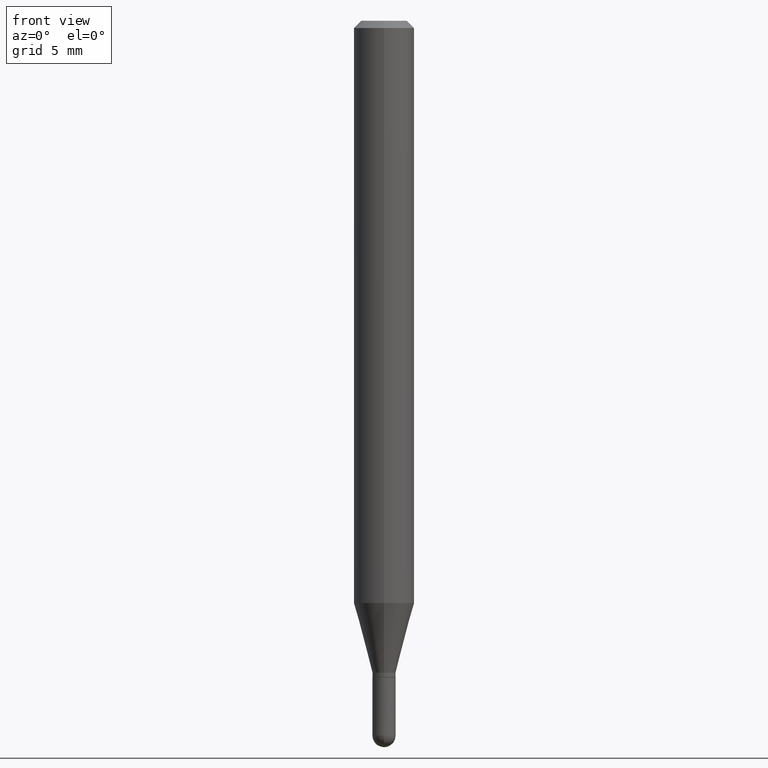
[diagram: clean part render]
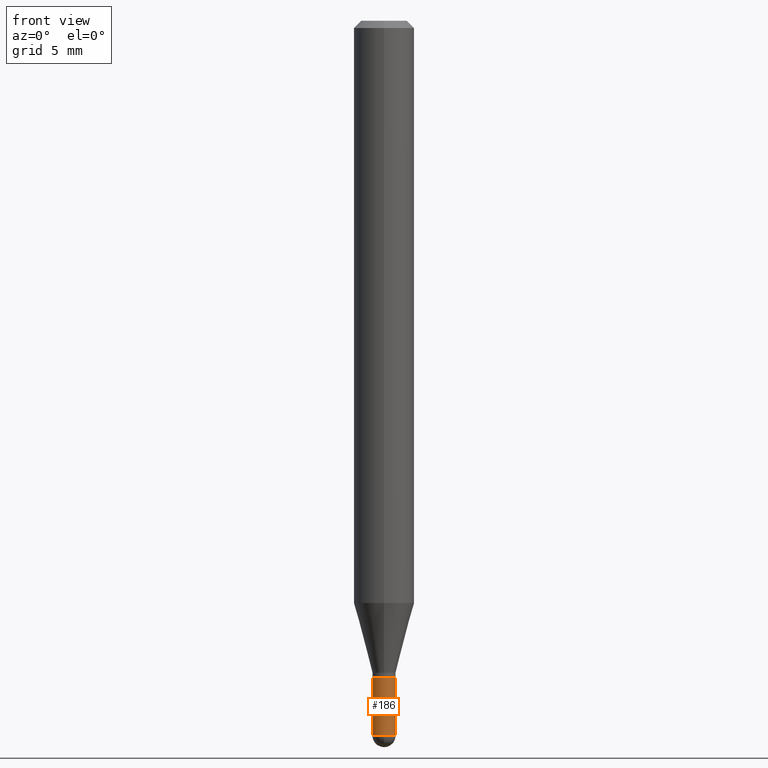
[diagram: same view with one face highlighted and labeled with its STEP entity id]
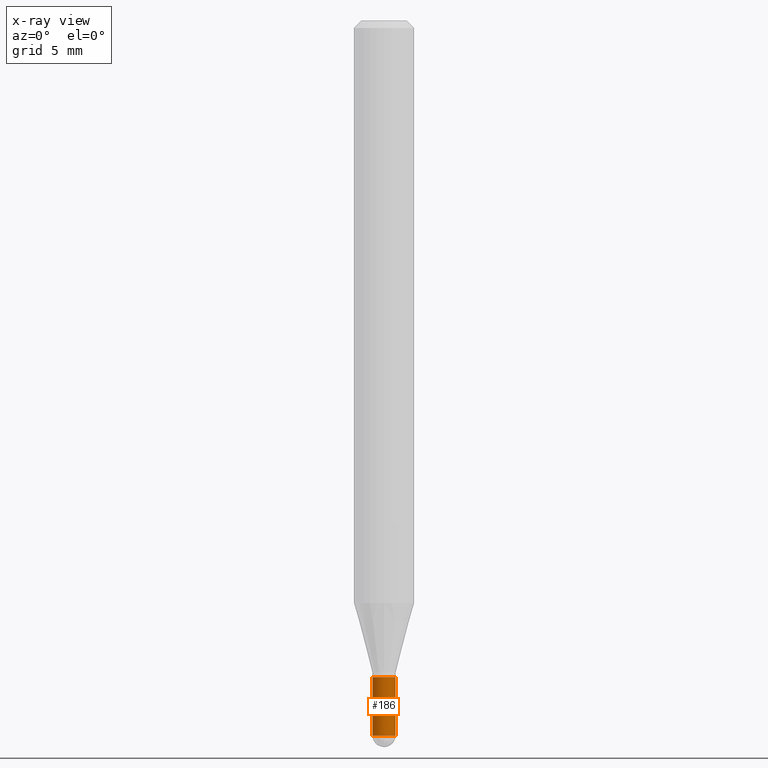
[diagram: x-ray of the same camera — body ghosted, the highlighted face saturated]
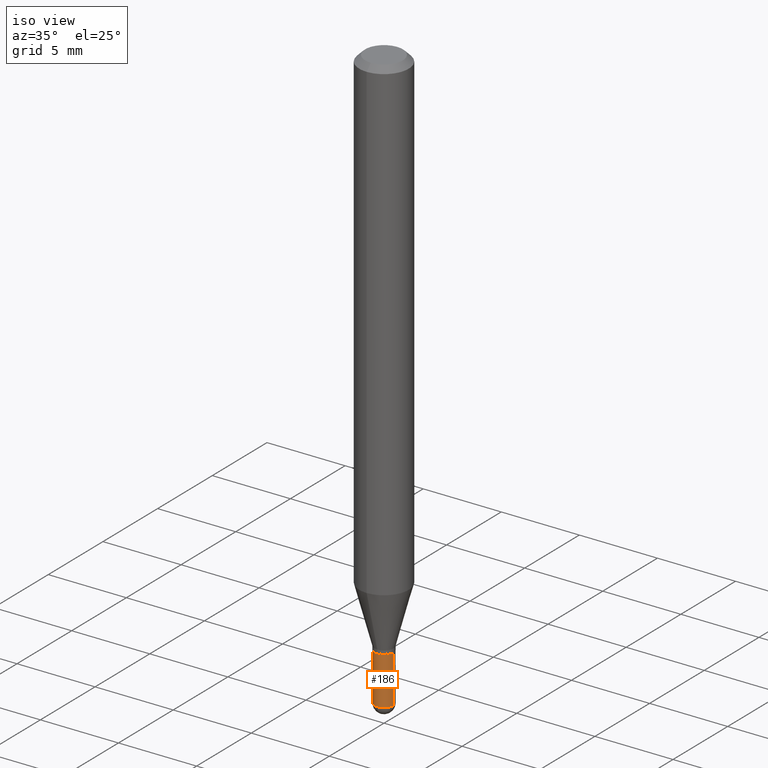
[diagram: same view with one face highlighted and labeled with its STEP entity id]
A machine part, front view. The second image highlights one B-rep face of the part: STEP entity #186.
The next image is the same camera in x-ray: the body ghosted, the highlighted face saturated — about 0% of this face is hidden behind the body in this view.
A second angle (iso view) of the same face is appended — the face is thin or edge-on in the first view.
In plain terms, the highlighted cylindrical surface (edge-blend (fillet) strip) has radius 0.6096 mm, axis along (-0, 0, 1).
Its self-contained STEP definition (entity closure, byte-faithful):
#4 = ORIENTED_EDGE ( 'NONE', *, *, #259, .T. ) ;
#12 = VERTEX_POINT ( 'NONE', #247 ) ;
#17 = FACE_OUTER_BOUND ( 'NONE', #316, .T. ) ;
#21 = CARTESIAN_POINT ( 'NONE',  ( 3.316055701187045333E-29, -4.734448695471306216E-15, -1.356000000000000316 ) ) ;
#30 = CARTESIAN_POINT ( 'NONE',  ( -0.02400000000000000397, 1.705302565824240728E-16, -1.180544421661177751E-30 ) ) ;
#37 = DIRECTION ( 'NONE',  ( -2.445468806185136877E-29, 3.491481338843145188E-15, 1.000000000000000000 ) ) ;
#49 = CIRCLE ( 'NONE', #497, 0.02400000000000000397 ) ;
#77 = CARTESIAN_POINT ( 'NONE',  ( -0.02400000000000000050, -4.773407319219470337E-15, -1.356000000000000316 ) ) ;
#84 = ORIENTED_EDGE ( 'NONE', *, *, #410, .T. ) ;
#99 = DIRECTION ( 'NONE',  ( 1.000000000000000000, -6.982962677686250144E-15, 0.000000000000000000 ) ) ;
#104 = VERTEX_POINT ( 'NONE', #330 ) ;
#107 = CARTESIAN_POINT ( 'NONE',  ( 0.02400000000000000397, -1.675911042644704316E-16, 1.170282426191024667E-30 ) ) ;
#112 = DIRECTION ( 'NONE',  ( -2.445468806185136877E-29, 3.491481338843145188E-15, 1.000000000000000000 ) ) ;
#113 = ORIENTED_EDGE ( 'NONE', *, *, #223, .T. ) ;
#123 = EDGE_CURVE ( 'NONE', #380, #485, #166, .T. ) ;
#139 = AXIS2_PLACEMENT_3D ( 'NONE', #21, #500, #339 ) ;
#142 = ORIENTED_EDGE ( 'NONE', *, *, #123, .F. ) ;
#149 = VECTOR ( 'NONE', #112, 39.37007874015748143 ) ;
#166 = CIRCLE ( 'NONE', #139, 0.02400000000000000050 ) ;
#168 = CARTESIAN_POINT ( 'NONE',  ( 0.02400000000000000050, -4.902039799735776870E-15, -1.356000000000000316 ) ) ;
#186 = ADVANCED_FACE ( 'NONE', ( #17 ), #493, .T. ) ;
#211 = CARTESIAN_POINT ( 'NONE',  ( 3.609511957929261635E-29, -5.153426456132482850E-15, -1.475999999999999979 ) ) ;
#223 = EDGE_CURVE ( 'NONE', #12, #104, #49, .T. ) ;
#230 = DIRECTION ( 'NONE',  ( -2.445468806185136597E-29, 3.491481338843145583E-15, 1.000000000000000000 ) ) ;
#247 = CARTESIAN_POINT ( 'NONE',  ( -0.02400000000000000397, -4.773407319219470337E-15, -1.475999999999999979 ) ) ;
#259 = EDGE_CURVE ( 'NONE', #104, #429, #416, .T. ) ;
#268 = CARTESIAN_POINT ( 'NONE',  ( 0.02400000000000000397, -5.111528680066364398E-15, -1.475999999999999979 ) ) ;
#293 = VECTOR ( 'NONE', #37, 39.37007874015748143 ) ;
#306 = LINE ( 'NONE', #107, #149 ) ;
#316 = EDGE_LOOP ( 'NONE', ( #424, #113, #4, #84, #142 ) ) ;
#330 = CARTESIAN_POINT ( 'NONE',  ( -1.675911042644349329E-16, -0.02400000000000524630, -1.475999999999999979 ) ) ;
#337 = DIRECTION ( 'NONE',  ( -2.445468806185136597E-29, 3.491481338843145583E-15, 1.000000000000000000 ) ) ;
#339 = DIRECTION ( 'NONE',  ( 1.000000000000000000, -6.982962677686251722E-15, 0.000000000000000000 ) ) ;
#344 = CARTESIAN_POINT ( 'NONE',  ( 3.609511957929261635E-29, -5.153426456132482850E-15, -1.475999999999999979 ) ) ;
#363 = AXIS2_PLACEMENT_3D ( 'NONE', #413, #337, #490 ) ;
#379 = EDGE_CURVE ( 'NONE', #12, #380, #505, .T. ) ;
#380 = VERTEX_POINT ( 'NONE', #77 ) ;
#392 = DIRECTION ( 'NONE',  ( 1.000000000000000000, -6.982962677686250144E-15, 0.000000000000000000 ) ) ;
#410 = EDGE_CURVE ( 'NONE', #429, #485, #306, .T. ) ;
#413 = CARTESIAN_POINT ( 'NONE',  ( 0.000000000000000000, 0.000000000000000000, 0.000000000000000000 ) ) ;
#416 = CIRCLE ( 'NONE', #454, 0.02400000000000000397 ) ;
#424 = ORIENTED_EDGE ( 'NONE', *, *, #379, .F. ) ;
#429 = VERTEX_POINT ( 'NONE', #268 ) ;
#454 = AXIS2_PLACEMENT_3D ( 'NONE', #344, #230, #392 ) ;
#460 = DIRECTION ( 'NONE',  ( -2.445468806185136597E-29, 3.491481338843145583E-15, 1.000000000000000000 ) ) ;
#485 = VERTEX_POINT ( 'NONE', #168 ) ;
#490 = DIRECTION ( 'NONE',  ( 1.000000000000000000, -6.982962677686266711E-15, 4.876176775795935232E-29 ) ) ;
#493 = CYLINDRICAL_SURFACE ( 'NONE', #363, 0.02400000000000000397 ) ;
#497 = AXIS2_PLACEMENT_3D ( 'NONE', #211, #460, #99 ) ;
#500 = DIRECTION ( 'NONE',  ( -2.445468806185136597E-29, 3.491481338843145583E-15, 1.000000000000000000 ) ) ;
#505 = LINE ( 'NONE', #30, #293 ) ;